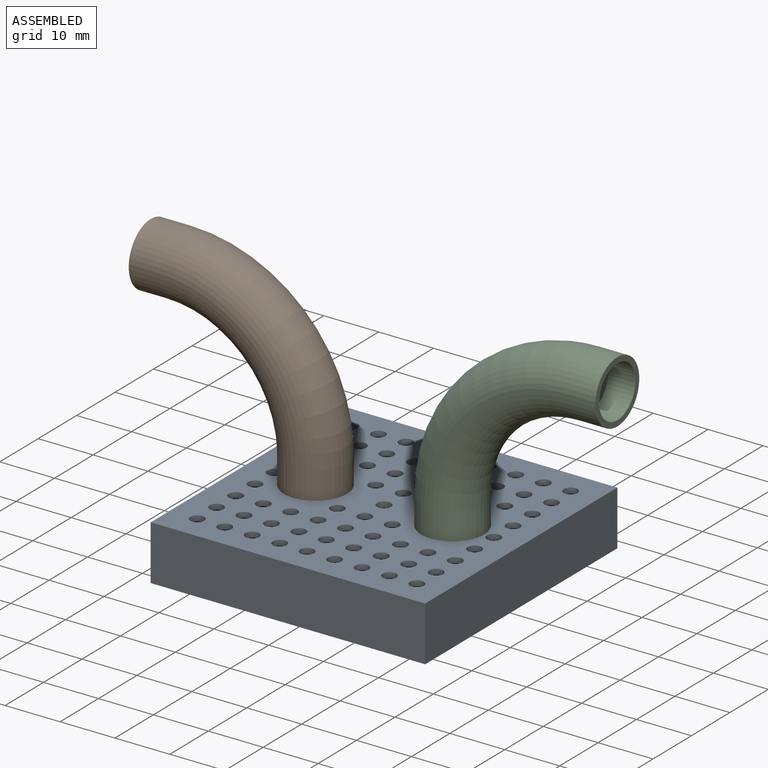
[diagram: assembled view]
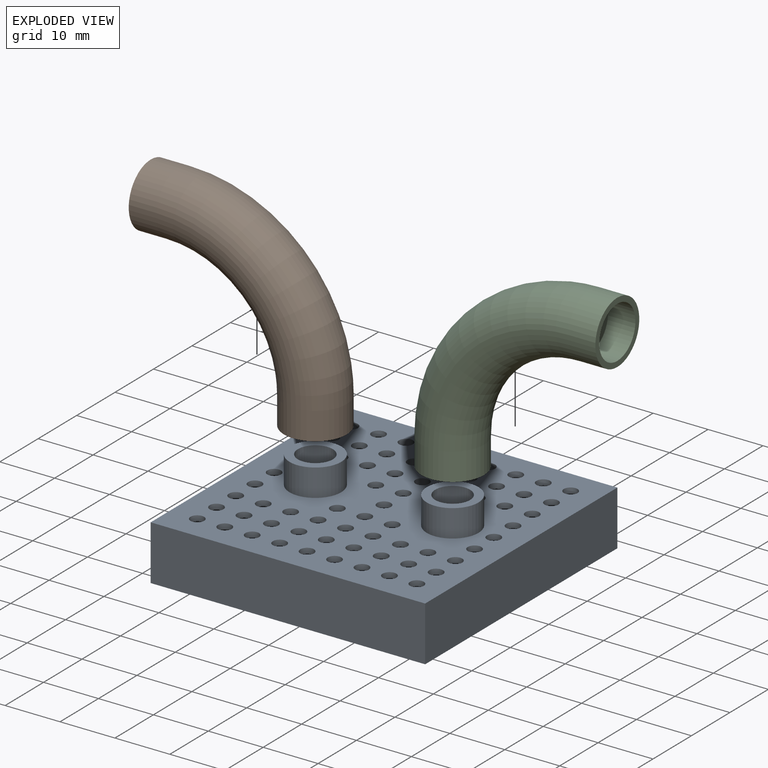
[diagram: exploded view]
GUIDED TOUR — MATED ASSEMBLY (Onshape document fba2bc27d058dbc4be328839, AutoMate assembly fba2bc27d058dbc4be328839_a8f70bb02c4efbf4e66c3075_ac7df6438cc9a39819d6a9e4_default)

This assembly has 3 components, labeled P0..P2 below (a component is one placed occurrence of a part; the same part can appear more than once), held together by 2 mates. A mate is a constraint between two components; its type names the relative motion it leaves free:
  SLIDER — leaves translation along the listed axis free.
Axis/direction vectors are unit vectors and 'through' points are millimeter coordinates, both in the assembly's world frame.

MATES
  1. SLIDER "Slider 2": P1 <-> P0, axis (0.000, 0.000, 1.000) through (-12.50, 0.00, 15.00) mm
  2. SLIDER "Slider 1": P2 <-> P0, axis (0.000, 0.000, -1.000) through (12.50, 0.00, 15.00) mm

ASSEMBLY ORDER
  1. P0 — the base component [order heuristic]
  2. P1 [order heuristic]
  3. P2 [order heuristic]
Order-tag legend:
  [order heuristic] — this assembly is geometrically interlocked (no collision-free removal order exists), so components are listed in mate-graph order; insertion feasibility is not verified.

Of the 3 components, 1 carries the full construction recipe — the FeatureScript program that regenerates the part's solid from scratch; the rest are supplied as boundary geometry only.
Each toured component is shown spotlighted twice — in the assembled view, then in the exploded view, where a leader line traces a displaced component back to its assembled socket (saturated green if recipe-attached, orange if geometry-only; every other component desaturated gray) — followed by its recipe or geometry summary and the mates that hold it.
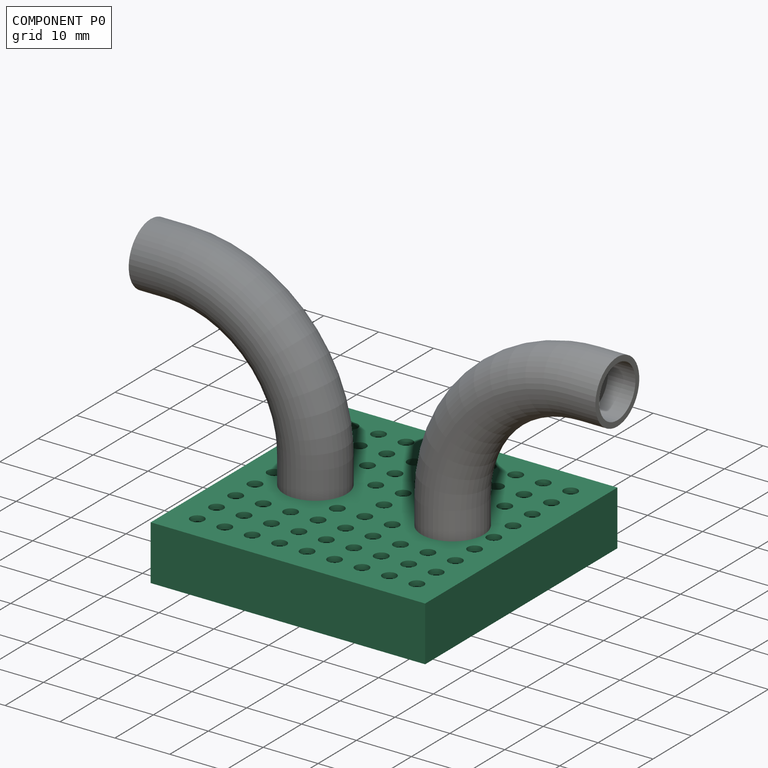
[diagram: component P0 — assembled]
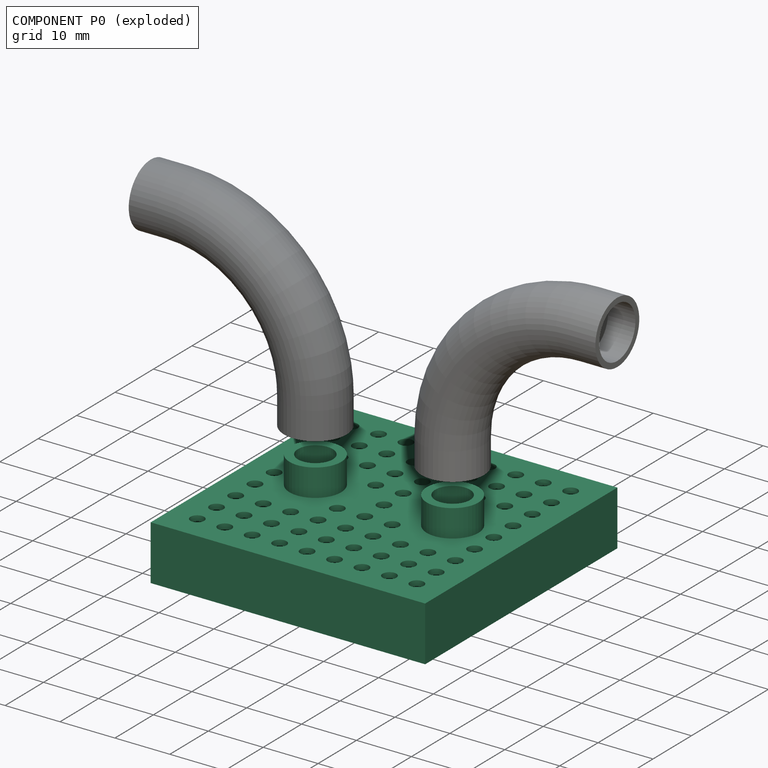
[diagram: component P0 — exploded]
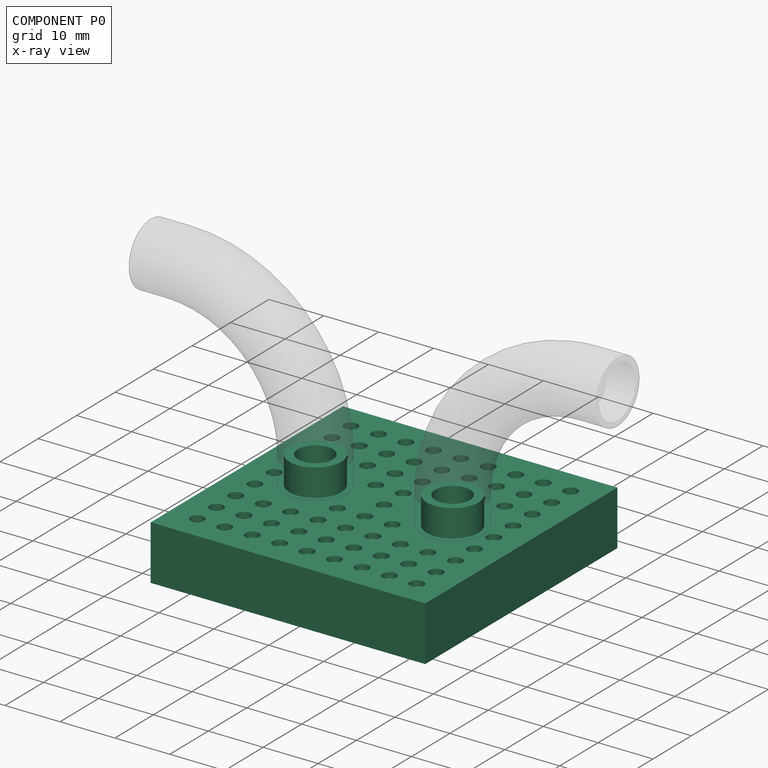
[diagram: component P0 — x-ray view]
COMPONENT P0 — recipe-attached (CADFS 00704266, mesh-verified: the recipe's output STEP matches this component's geometry to below the mesh-comparison resolution (tessellation chordal tolerance ~0.108 mm)).
Held by: SLIDER mate "Slider 2" to P1; SLIDER mate "Slider 1" to P2.
Construction recipe (FeatureScript — the CAD program that rebuilds this solid; sketch coordinates are in the units given by the * unit suffixes, e.g. mm):

FeatureScript 1511;
import(path : "onshape/std/geometry.fs", version : "1511.0");
import(path : "onshape/std/common.fs", version : "1511.0");
const mm = millimeter;
const VERTEX = EntityType.VERTEX;
const EDGE = EntityType.EDGE;
const FACE = EntityType.FACE;
const BODY = EntityType.BODY;
function v(x, y){return vector(x, y);}
function OD(order){return orderDisambiguation(order);}
function OSD(set){return originalSetDisambiguation(set);}
function TD(topology){return topologyDisambiguation(topology);}
function TDD(query){return trueDependencyDisambiguation(query);}
function sQuery(a, b, c) {return sketchEntityQuery(a, b, c);}

annotation { "Feature Type Name" : "Feature", "Feature Type Description" : "" }
export const myFeature = defineFeature(function(context is Context, id is Id, definition is map)
    precondition{}
    {
        {
            var Q0;
            Q0=qCreatedBy(makeId("Top.planeOp"),FACE);
            var sketch = newSketch(context, id + "F0", { "sketchPlane" : qUnion([Q0])});
            skLineSegment(sketch, "E0.bottom", {"start": v(-25, 25) * mm, "end": v(25, 25) * mm});
            skLineSegment(sketch, "E0.top", {"start": v(-25, -25) * mm, "end": v(25, -25) * mm});
            skLineSegment(sketch, "E0.left", {"start": v(-25, 25) * mm, "end": v(-25, -25) * mm});
            skLineSegment(sketch, "E0.right", {"start": v(25, 25) * mm, "end": v(25, -25) * mm});
            skSolve(sketch);
        }
        {
            var Q0;
            Q0=makeQuery(id+"F0.imprint","IMPRINT",FACE,{"disambiguationData":[TD([[makeQuery(id+"F0.imprint","IMPRINT",EDGE,{"derivedFrom":sQuery(id+"F0.wireOp",EDGE,"E0.bottom")}),-1.0]])]});
            extrude(context, id + "F1", {"entities" : qUnion([Q0]), "depth" : 10 * mm, "offsetDistance" : 25 * mm});
        }
        {
            var Q0;
            Q0=makeQuery(id+"F1.opExtrude","CAP_FACE",FACE,{"disambiguationData":[OSD([sQuery(id+"F0.wireOp",EDGE,"E0.bottom"),sQuery(id+"F0.wireOp",EDGE,"E0.top"),sQuery(id+"F0.wireOp",EDGE,"E0.left"),sQuery(id+"F0.wireOp",EDGE,"E0.right")])],"isStart":false});
            var Q1;
            Q1=makeQuery(id+"F1.opExtrude","SWEPT_BODY",BODY,{"disambiguationData":[OSD([sQuery(id+"F0.wireOp",EDGE,"E0.bottom"),sQuery(id+"F0.wireOp",EDGE,"E0.top"),sQuery(id+"F0.wireOp",EDGE,"E0.left"),sQuery(id+"F0.wireOp",EDGE,"E0.right")])]});
            shell(context, id + "F2", {"isHollow" : true, "entities" : qUnion([Q0]), "parts" : qUnion([Q1]), "thickness" : 1 * mm});
        }
        {
            var Q0;
            Q0=makeQuery(id+"F1.opExtrude","CAP_FACE",FACE,{"disambiguationData":[OSD([sQuery(id+"F0.wireOp",EDGE,"E0.bottom"),sQuery(id+"F0.wireOp",EDGE,"E0.top"),sQuery(id+"F0.wireOp",EDGE,"E0.left"),sQuery(id+"F0.wireOp",EDGE,"E0.right")])],"isStart":false});
            var sketch = newSketch(context, id + "F3", { "sketchPlane" : qUnion([Q0])});
            skCircle(sketch, "E1", {"center": v(-12.5, 0) * mm, "radius": 3.17 * mm});
            skCircle(sketch, "E2", {"center": v(12.5, 0) * mm, "radius": 3.17 * mm});
            skSolve(sketch);
        }
        {
            var Q0;
            Q0=makeQuery(id+"F3.imprint","IMPRINT",FACE,{"disambiguationData":[TD([[makeQuery(id+"F3.imprint","IMPRINT",EDGE,{"derivedFrom":sQuery(id+"F3.wireOp",EDGE,"E2")}),1.0]])]});
            var Q1;
            Q1=makeQuery(id+"F3.imprint","IMPRINT",FACE,{"disambiguationData":[TD([[makeQuery(id+"F3.imprint","IMPRINT",EDGE,{"derivedFrom":sQuery(id+"F3.wireOp",EDGE,"E1")}),1.0]])]});
            extrude(context, id + "F4", {"entities" : qUnion([Q0, Q1]), "operationType" : NewBodyOperationType.REMOVE, "oppositeDirection" : true, "depth" : 2 * mm, "offsetDistance" : 25 * mm});
        }
        {
            var Q0;
            Q0=makeQuery(id+"F1.opExtrude","CAP_FACE",FACE,{"disambiguationData":[OSD([sQuery(id+"F0.wireOp",EDGE,"E0.bottom"),sQuery(id+"F0.wireOp",EDGE,"E0.top"),sQuery(id+"F0.wireOp",EDGE,"E0.left"),sQuery(id+"F0.wireOp",EDGE,"E0.right")])],"isStart":false});
            var sketch = newSketch(context, id + "F5", { "sketchPlane" : qUnion([Q0])});
            skCircle(sketch, "E3", {"center": v(-12.5, 0) * mm, "radius": 3.17 * mm});
            skCircle(sketch, "E4", {"center": v(-12.5, 0) * mm, "radius": 4.7 * mm});
            skCircle(sketch, "E5", {"center": v(12.5, 0) * mm, "radius": 3.17 * mm});
            skCircle(sketch, "E6", {"center": v(12.5, 0) * mm, "radius": 4.7 * mm});
            skSolve(sketch);
        }
        {
            var Q0;
            Q0=makeQuery(id+"F5.imprint","IMPRINT",FACE,{"disambiguationData":[TD([[makeQuery(id+"F5.imprint","IMPRINT",EDGE,{"derivedFrom":sQuery(id+"F5.wireOp",EDGE,"E3")}),-1.0]])]});
            var Q1;
            Q1=makeQuery(id+"F5.imprint","IMPRINT",FACE,{"disambiguationData":[TD([[makeQuery(id+"F5.imprint","IMPRINT",EDGE,{"derivedFrom":sQuery(id+"F5.wireOp",EDGE,"E5")}),-1.0]])]});
            extrude(context, id + "F6", {"entities" : qUnion([Q0, Q1]), "operationType" : NewBodyOperationType.ADD, "depth" : 5 * mm, "offsetDistance" : 25 * mm});
        }
        {
            var Q0;
            Q0=makeQuery(id+"F1.opExtrude","CAP_FACE",FACE,{"disambiguationData":[OSD([sQuery(id+"F0.wireOp",EDGE,"E0.bottom"),sQuery(id+"F0.wireOp",EDGE,"E0.top"),sQuery(id+"F0.wireOp",EDGE,"E0.left"),sQuery(id+"F0.wireOp",EDGE,"E0.right")])],"isStart":false});
            var sketch = newSketch(context, id + "F7", { "sketchPlane" : qUnion([Q0])});
            skCircle(sketch, "E7", {"center": v(-20, 20) * mm, "radius": 1.25 * mm});
            skCircle(sketch, "E8", {"center": v(-15, 20) * mm, "radius": 1.25 * mm});
            skCircle(sketch, "E9.2.0.0", {"center": v(-10, 20) * mm, "radius": 1.25 * mm});
            skCircle(sketch, "E9.3.0.0", {"center": v(-5, 20) * mm, "radius": 1.25 * mm});
            skCircle(sketch, "E9.4.0.0", {"center": v(0, 20) * mm, "radius": 1.25 * mm});
            skCircle(sketch, "E9.5.0.0", {"center": v(5, 20) * mm, "radius": 1.25 * mm});
            skCircle(sketch, "E9.6.0.0", {"center": v(10, 20) * mm, "radius": 1.25 * mm});
            skCircle(sketch, "E9.7.0.0", {"center": v(15, 20) * mm, "radius": 1.25 * mm});
            skCircle(sketch, "E9.8.0.0", {"center": v(20, 20) * mm, "radius": 1.25 * mm});
            skLineSegment(sketch, "E9.direction1", {"start": v(-20, 20) * mm, "end": v(-15, 20) * mm, "construction": true});
            skLineSegment(sketch, "E10", {"start": v(-20, 20) * mm, "end": v(-20, 17.5) * mm});
            skLineSegment(sketch, "E11", {"start": v(-20, 17.5) * mm, "end": v(20, 17.5) * mm});
            skCircle(sketch, "E12.MirrorC", {"center": v(-20, 15) * mm, "radius": 1.25 * mm});
            skCircle(sketch, "E13.MirrorC", {"center": v(-15, 15) * mm, "radius": 1.25 * mm});
            skCircle(sketch, "E14.MirrorC", {"center": v(-10, 15) * mm, "radius": 1.25 * mm});
            skCircle(sketch, "E15.MirrorC", {"center": v(-5, 15) * mm, "radius": 1.25 * mm});
            skCircle(sketch, "E16.MirrorC", {"center": v(5, 15) * mm, "radius": 1.25 * mm});
            skCircle(sketch, "E17.MirrorC", {"center": v(10, 15) * mm, "radius": 1.25 * mm});
            skCircle(sketch, "E18.MirrorC", {"center": v(0, 15) * mm, "radius": 1.25 * mm});
            skCircle(sketch, "E19.MirrorC", {"center": v(15, 15) * mm, "radius": 1.25 * mm});
            skCircle(sketch, "E20.MirrorC", {"center": v(20, 15) * mm, "radius": 1.25 * mm});
            skLineSegment(sketch, "E21", {"start": v(-20, 17.5) * mm, "end": v(-20, 12.5) * mm});
            skLineSegment(sketch, "E22", {"start": v(-20, 12.5) * mm, "end": v(20, 12.5) * mm});
            skCircle(sketch, "E23.MirrorC", {"center": v(-20, 10) * mm, "radius": 1.25 * mm});
            skCircle(sketch, "E24.MirrorC", {"center": v(-15, 10) * mm, "radius": 1.25 * mm});
            skCircle(sketch, "E25.MirrorC", {"center": v(-10, 10) * mm, "radius": 1.25 * mm});
            skCircle(sketch, "E26.MirrorC", {"center": v(-5, 10) * mm, "radius": 1.25 * mm});
            skCircle(sketch, "E27.MirrorC", {"center": v(0, 10) * mm, "radius": 1.25 * mm});
            skCircle(sketch, "E28.MirrorC", {"center": v(10, 10) * mm, "radius": 1.25 * mm});
            skCircle(sketch, "E29.MirrorC", {"center": v(15, 10) * mm, "radius": 1.25 * mm});
            skCircle(sketch, "E30.MirrorC", {"center": v(5, 10) * mm, "radius": 1.25 * mm});
            skCircle(sketch, "E31.MirrorC", {"center": v(20, 10) * mm, "radius": 1.25 * mm});
            skLineSegment(sketch, "E32", {"start": v(-20, 12.5) * mm, "end": v(-20, 7.5) * mm});
            skLineSegment(sketch, "E33", {"start": v(-20, 7.5) * mm, "end": v(20, 7.5) * mm});
            skCircle(sketch, "E34.MirrorC", {"center": v(-20, 5) * mm, "radius": 1.25 * mm});
            skCircle(sketch, "E35.MirrorC", {"center": v(-5, 5) * mm, "radius": 1.25 * mm});
            skCircle(sketch, "E36.MirrorC", {"center": v(0, 5) * mm, "radius": 1.25 * mm});
            skCircle(sketch, "E37.MirrorC", {"center": v(5, 5) * mm, "radius": 1.25 * mm});
            skCircle(sketch, "E38.MirrorC", {"center": v(20, 5) * mm, "radius": 1.25 * mm});
            skLineSegment(sketch, "E39", {"start": v(-20, 7.5) * mm, "end": v(-20, 2.5) * mm});
            skLineSegment(sketch, "E40", {"start": v(-20, 2.5) * mm, "end": v(-20, -2.5) * mm});
            skLineSegment(sketch, "E41", {"start": v(-20, -2.5) * mm, "end": v(-20, -7.5) * mm});
            skLineSegment(sketch, "E42", {"start": v(-20, -7.5) * mm, "end": v(-20, -12.5) * mm});
            skPoint(sketch, "E42.endSnap0", {"position": v(-20, -5) * mm});
            skLineSegment(sketch, "E43", {"start": v(-20, -12.5) * mm, "end": v(-20, -17.5) * mm});
            skLineSegment(sketch, "E44", {"start": v(-20, 2.5) * mm, "end": v(20, 2.5) * mm});
            skLineSegment(sketch, "E45", {"start": v(-20, -2.5) * mm, "end": v(20, -2.5) * mm});
            skLineSegment(sketch, "E46", {"start": v(-20, -7.5) * mm, "end": v(20, -7.5) * mm});
            skLineSegment(sketch, "E47", {"start": v(-20, -12.5) * mm, "end": v(20, -12.5) * mm});
            skLineSegment(sketch, "E48", {"start": v(-20, -17.5) * mm, "end": v(20, -17.5) * mm});
            skCircle(sketch, "E49.MirrorC", {"center": v(-20, 0) * mm, "radius": 1.25 * mm});
            skCircle(sketch, "E50.MirrorC", {"center": v(0, 0) * mm, "radius": 1.25 * mm});
            skCircle(sketch, "E51.MirrorC", {"center": v(20, 0) * mm, "radius": 1.25 * mm});
            skCircle(sketch, "E52.MirrorC", {"center": v(-20, -15) * mm, "radius": 1.25 * mm});
            skCircle(sketch, "E53.MirrorC", {"center": v(-15, -15) * mm, "radius": 1.25 * mm});
            skCircle(sketch, "E54.MirrorC", {"center": v(-10, -15) * mm, "radius": 1.25 * mm});
            skCircle(sketch, "E55.MirrorC", {"center": v(-5, -15) * mm, "radius": 1.25 * mm});
            skCircle(sketch, "E56.MirrorC", {"center": v(0, -15) * mm, "radius": 1.25 * mm});
            skCircle(sketch, "E57.MirrorC", {"center": v(5, -15) * mm, "radius": 1.25 * mm});
            skCircle(sketch, "E58.MirrorC", {"center": v(10, -15) * mm, "radius": 1.25 * mm});
            skCircle(sketch, "E59.MirrorC", {"center": v(15, -15) * mm, "radius": 1.25 * mm});
            skCircle(sketch, "E60.MirrorC", {"center": v(20, -15) * mm, "radius": 1.25 * mm});
            skCircle(sketch, "E61.MirrorC", {"center": v(-20, -20) * mm, "radius": 1.25 * mm});
            skCircle(sketch, "E62.MirrorC", {"center": v(-15, -20) * mm, "radius": 1.25 * mm});
            skCircle(sketch, "E63.MirrorC", {"center": v(-10, -20) * mm, "radius": 1.25 * mm});
            skCircle(sketch, "E64.MirrorC", {"center": v(-5, -20) * mm, "radius": 1.25 * mm});
            skCircle(sketch, "E65.MirrorC", {"center": v(0, -20) * mm, "radius": 1.25 * mm});
            skCircle(sketch, "E66.MirrorC", {"center": v(5, -20) * mm, "radius": 1.25 * mm});
            skCircle(sketch, "E67.MirrorC", {"center": v(10, -20) * mm, "radius": 1.25 * mm});
            skCircle(sketch, "E68.MirrorC", {"center": v(15, -20) * mm, "radius": 1.25 * mm});
            skCircle(sketch, "E69.MirrorC", {"center": v(20, -20) * mm, "radius": 1.25 * mm});
            skCircle(sketch, "E70.MirrorC", {"center": v(-20, -10) * mm, "radius": 1.25 * mm});
            skCircle(sketch, "E71.MirrorC", {"center": v(-15, -10) * mm, "radius": 1.25 * mm});
            skCircle(sketch, "E72.MirrorC", {"center": v(-10, -10) * mm, "radius": 1.25 * mm});
            skCircle(sketch, "E73.MirrorC", {"center": v(-5, -10) * mm, "radius": 1.25 * mm});
            skCircle(sketch, "E74.MirrorC", {"center": v(0, -10) * mm, "radius": 1.25 * mm});
            skCircle(sketch, "E75.MirrorC", {"center": v(5, -10) * mm, "radius": 1.25 * mm});
            skCircle(sketch, "E76.MirrorC", {"center": v(10, -10) * mm, "radius": 1.25 * mm});
            skCircle(sketch, "E77.MirrorC", {"center": v(15, -10) * mm, "radius": 1.25 * mm});
            skCircle(sketch, "E78.MirrorC", {"center": v(20, -10) * mm, "radius": 1.25 * mm});
            skCircle(sketch, "E79.MirrorC", {"center": v(-20, -5) * mm, "radius": 1.25 * mm});
            skCircle(sketch, "E80.MirrorC", {"center": v(-5, -5) * mm, "radius": 1.25 * mm});
            skCircle(sketch, "E81.MirrorC", {"center": v(0, -5) * mm, "radius": 1.25 * mm});
            skCircle(sketch, "E82.MirrorC", {"center": v(5, -5) * mm, "radius": 1.25 * mm});
            skCircle(sketch, "E83.MirrorC", {"center": v(20, -5) * mm, "radius": 1.25 * mm});
            skSolve(sketch);
        }
        {
            var Q0;
            Q0 = qSketchRegion(id + "F7", true);
            extrude(context, id + "F8", {"entities" : qUnion([Q0]), "operationType" : NewBodyOperationType.REMOVE, "oppositeDirection" : true, "depth" : 1.5 * mm, "offsetDistance" : 25 * mm});
        }
    });
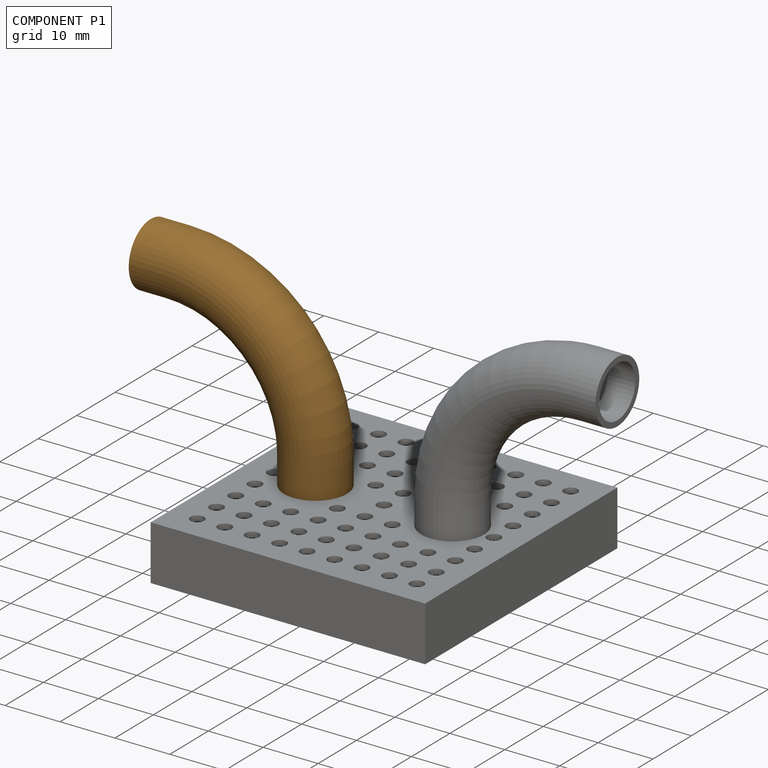
[diagram: component P1 — assembled]
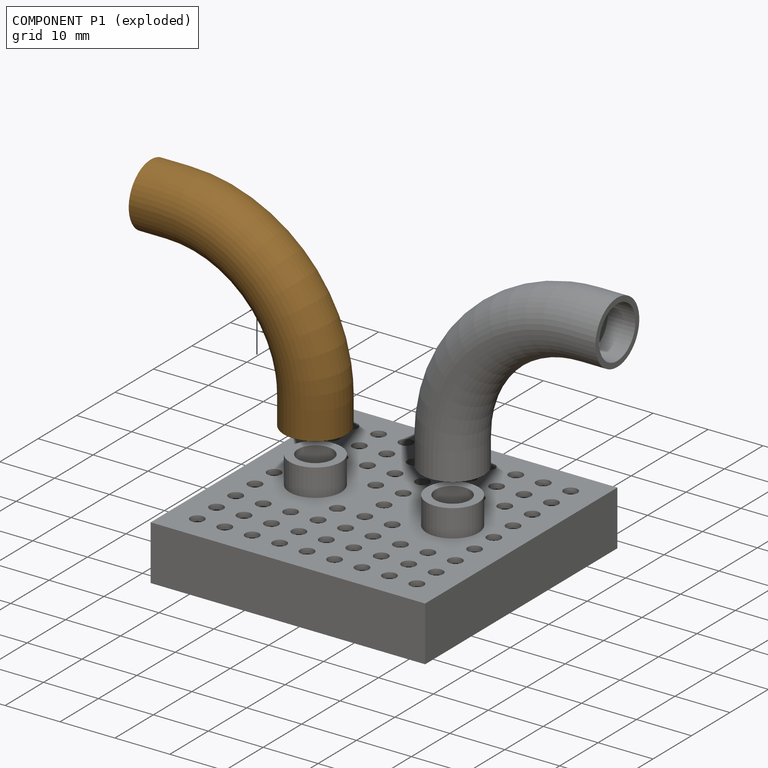
[diagram: component P1 — exploded]
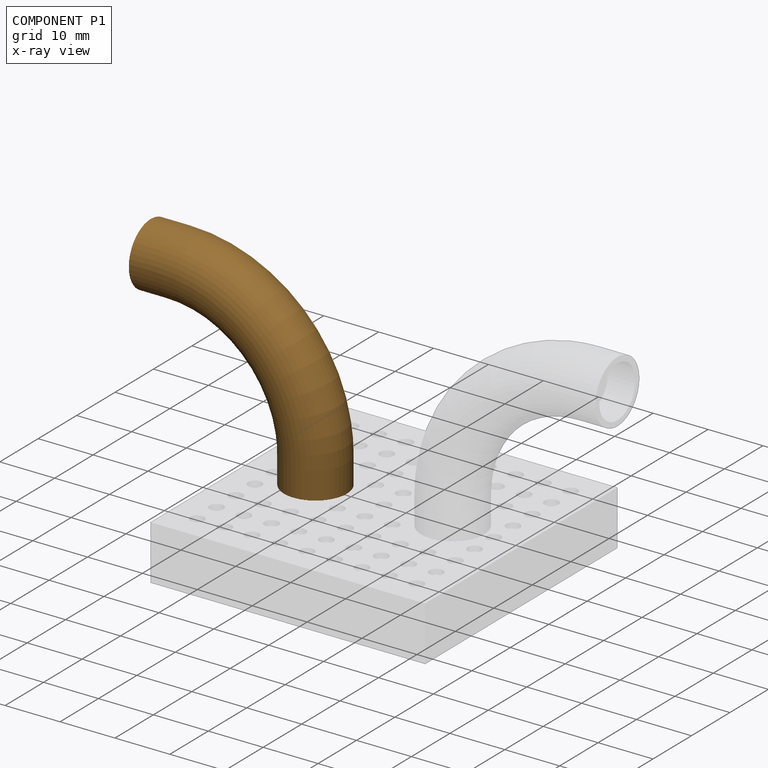
[diagram: component P1 — x-ray view]
COMPONENT P1 — geometry summary (no construction recipe available for this part):
  bounding box: 38.2 x 38.2 x 11.4 mm
  B-rep topology: 1 solid, 10 faces, 32 edges
  volume: 3116 mm^3 (19% of its bounding box)
  symmetry: mirror-symmetric across its z mid-plane
Held by: SLIDER mate "Slider 2" to P0.
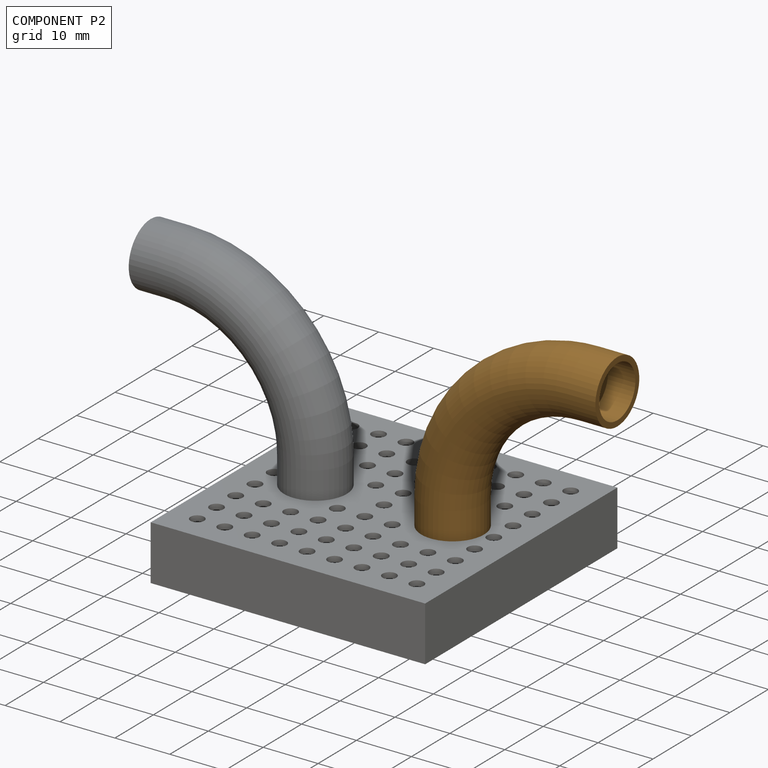
[diagram: component P2 — assembled]
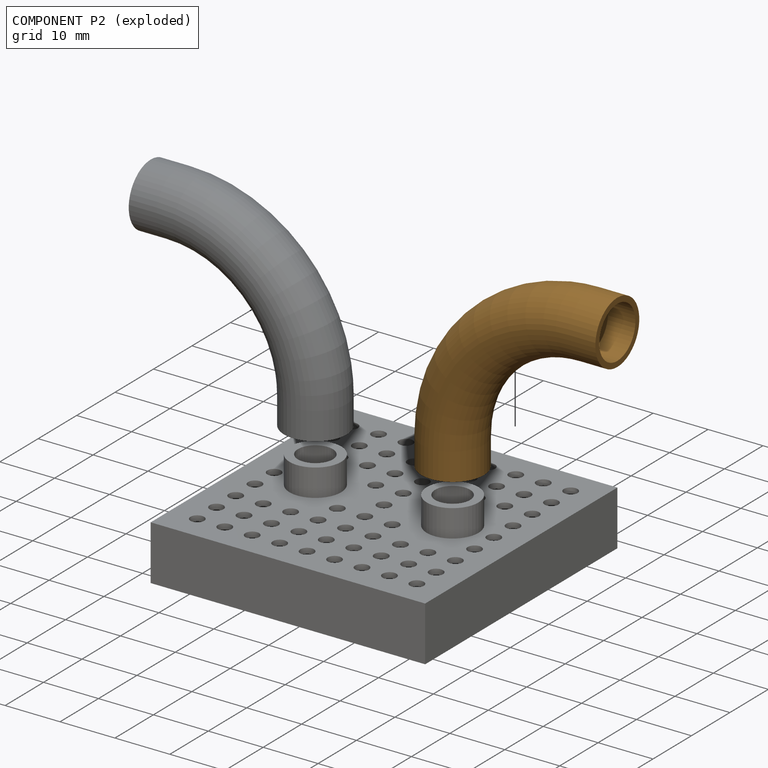
[diagram: component P2 — exploded]
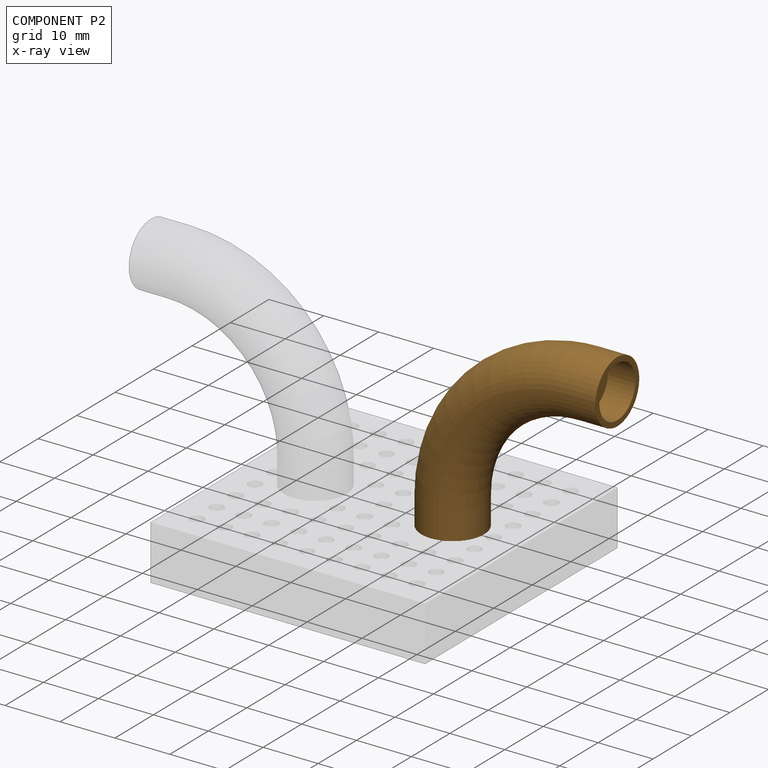
[diagram: component P2 — x-ray view]
COMPONENT P2 — geometry summary (no construction recipe available for this part):
  bounding box: 38.2 x 38.2 x 11.4 mm
  B-rep topology: 1 solid, 10 faces, 32 edges
  volume: 3116 mm^3 (19% of its bounding box)
  symmetry: mirror-symmetric across its z mid-plane
Held by: SLIDER mate "Slider 1" to P0.
PROVENANCE & LICENSES
Assembly (occurrences, transforms, mates, per-part STEP geometry): AutoMate dataset, Zenodo record 7776208, CC0.
Construction recipes: CADFS (HuggingFace VladPyatov/CADFS, CC-BY-4.0, layered over the ABC dataset), FeatureScript reconstruction programs keyed by ABC model id.
Join: ABC meta listings map ABC model id -> Onshape documentId; within a shared document, parts are matched by geometric signature (bounding-box dims + volume at 0.1% relative tolerance, exact B-rep face/solid counts).
Verification: 1 of this assembly's 3 components carries a recipe attachment, and every attachment is mesh-verified: the CADFS STEP and the AutoMate member STEP were compared as meshes in their shared local frame (symmetric sampled-point-to-mesh distance); worst across the 1 attachment: below the mesh-comparison resolution (tessellation chordal tolerance ~0.108 mm) on a 72 mm part.
Renders: orthographic iso camera (az 35 / el 25); the floor grid conveys scale (grid pitch printed in each image; no ruler). In the exploded view each component is displaced by its stored offset vector: the offsets alone carry the explosion direction (mate normal/axis signs are not orientation cues and do not encode it), and separation distances are assigned per mate-chain, not proportionally to assembly-order depth.
